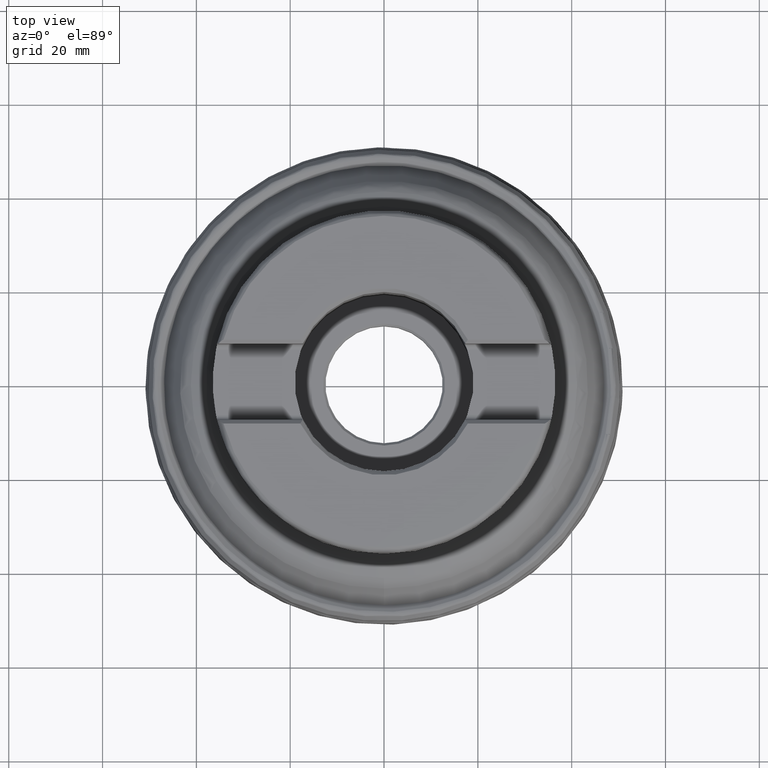
[diagram: clean part render]
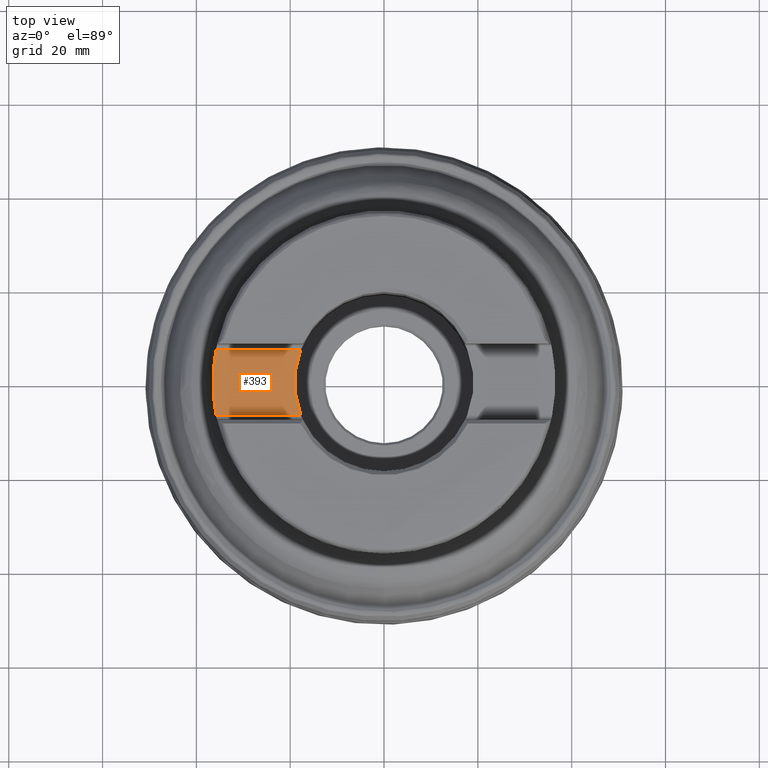
[diagram: same view with one face highlighted and labeled with its STEP entity id]
A machine part, top view. The second image highlights one B-rep face of the part: STEP entity #393.
In plain terms, the highlighted planar face has unit normal (0, 0, 1).
Its self-contained STEP definition (entity closure, byte-faithful):
#305=CIRCLE('',#1187,36.5);
#324=CIRCLE('',#1215,19.05);
#393=ADVANCED_FACE('',(#464),#446,.T.);
#446=PLANE('',#1248);
#464=FACE_OUTER_BOUND('',#528,.T.);
#528=EDGE_LOOP('',(#781,#782,#783,#784));
#621=LINE('',#2231,#648);
#622=LINE('',#2232,#649);
#648=VECTOR('',#1457,1.);
#649=VECTOR('',#1458,1.);
#781=ORIENTED_EDGE('',*,*,#1072,.T.);
#782=ORIENTED_EDGE('',*,*,#1051,.F.);
#783=ORIENTED_EDGE('',*,*,#1073,.T.);
#784=ORIENTED_EDGE('',*,*,#1030,.T.);
#928=VERTEX_POINT('',#2054);
#929=VERTEX_POINT('',#2056);
#947=VERTEX_POINT('',#2133);
#948=VERTEX_POINT('',#2135);
#1030=EDGE_CURVE('',#929,#928,#305,.T.);
#1051=EDGE_CURVE('',#947,#948,#324,.T.);
#1072=EDGE_CURVE('',#928,#948,#621,.T.);
#1073=EDGE_CURVE('',#947,#929,#622,.T.);
#1187=AXIS2_PLACEMENT_3D('',#2055,#1333,#1334);
#1215=AXIS2_PLACEMENT_3D('',#2134,#1389,#1390);
#1248=AXIS2_PLACEMENT_3D('',#2233,#1459,#1460);
#1333=DIRECTION('',(1.17145536458252E-15,7.45233380313038E-16,1.));
#1334=DIRECTION('',(-1.,1.35078922126886E-30,1.14064009379297E-15));
#1389=DIRECTION('',(1.17145536458252E-15,7.45233380313038E-16,1.));
#1390=DIRECTION('',(6.47031582366316E-31,1.,-7.2849279831047E-16));
#1457=DIRECTION('',(1.,-1.37230767120917E-30,-1.17145536458252E-15));
#1458=DIRECTION('',(-1.,1.37230767120917E-30,1.17145536458252E-15));
#1459=DIRECTION('',(1.17145536458252E-15,7.45233380313038E-16,1.));
#1460=DIRECTION('',(0.,1.,-7.42461647718073E-16));
#2054=CARTESIAN_POINT('',(-35.8341513084934,-6.93999999999994,50.7950000000001));
#2055=CARTESIAN_POINT('',(0.,5.95040752439693E-14,50.795));
#2056=CARTESIAN_POINT('',(-35.8341513084934,6.94000000000006,50.795));
#2133=CARTESIAN_POINT('',(-17.7408821652137,6.94000000000006,50.795));
#2134=CARTESIAN_POINT('',(5.95040752439693E-14,5.95040752439693E-14,50.795));
#2135=CARTESIAN_POINT('',(-17.7408821652137,-6.93999999999994,50.795));
#2231=CARTESIAN_POINT('',(67.0000000000001,-6.93999999999994,50.7949999999999));
#2232=CARTESIAN_POINT('',(67.0000000000001,6.94000000000006,50.7949999999999));
#2233=CARTESIAN_POINT('',(67.0000000000001,-8.13999999999994,50.7949999999999));